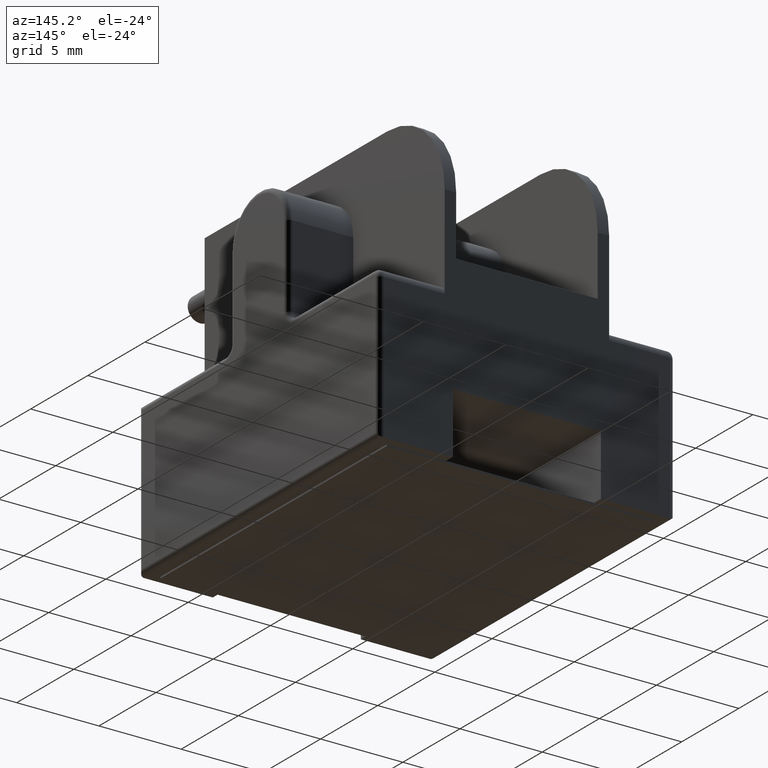
[diagram: clean part render]
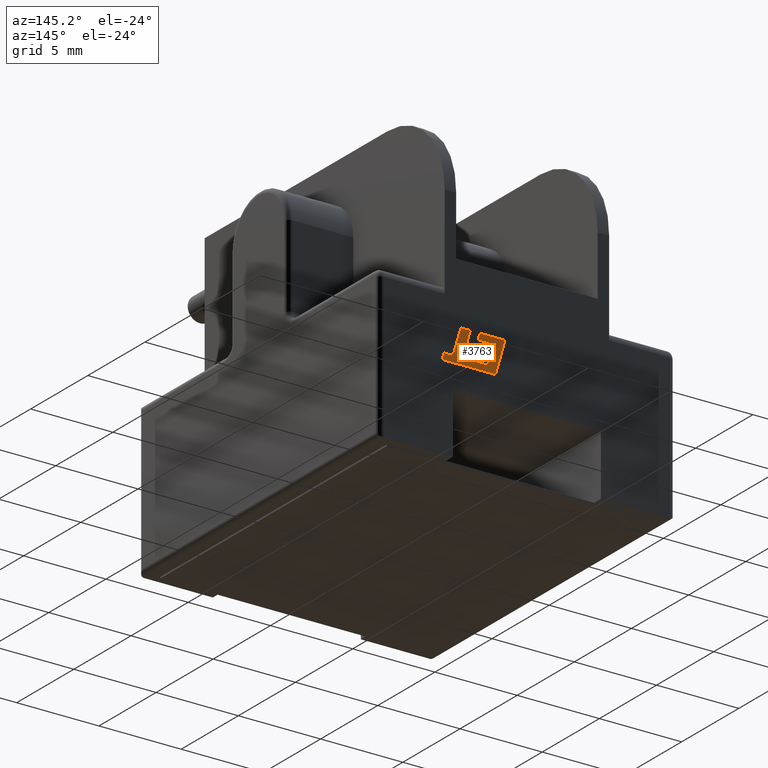
[diagram: same view with one face highlighted and labeled with its STEP entity id]
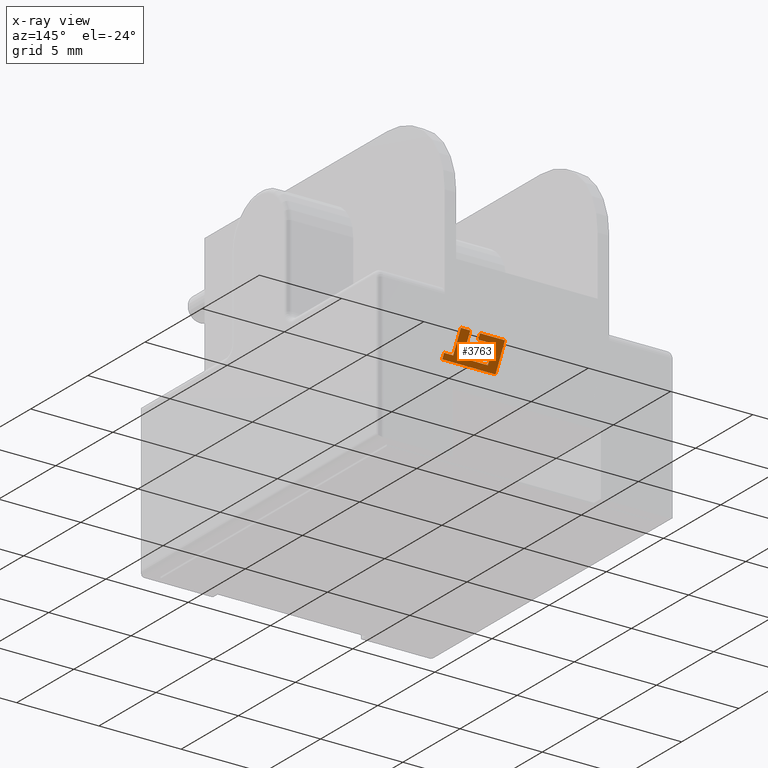
[diagram: x-ray of the same camera — body ghosted, the highlighted face saturated]
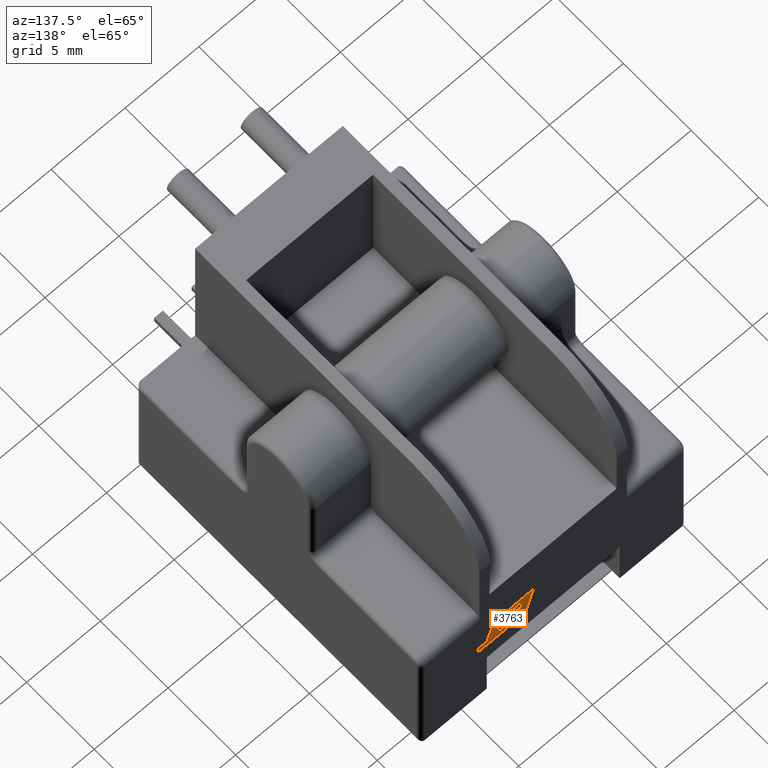
[diagram: same view with one face highlighted and labeled with its STEP entity id]
A machine part, auxiliary view. The second image highlights one B-rep face of the part: STEP entity #3763.
The next image is the same camera in x-ray: the body ghosted, the highlighted face saturated — about 0% of this face is hidden behind the body in this view.
A second angle (auxiliary view) of the same face is appended — the face is thin or edge-on in the first view.
In plain terms, the highlighted planar face has unit normal (-0, 1, 0).
Its self-contained STEP definition (entity closure, byte-faithful):
#9 = CARTESIAN_POINT ( 'NONE',  ( 11.85466442089491300, 21.00099999999999800, -12.32065912516223300 ) ) ;
#29 = LINE ( 'NONE', #2196, #5963 ) ;
#135 = ORIENTED_EDGE ( 'NONE', *, *, #2257, .T. ) ;
#136 = ORIENTED_EDGE ( 'NONE', *, *, #965, .T. ) ;
#167 = CARTESIAN_POINT ( 'NONE',  ( 12.90980248030664500, 21.00099999999999800, -13.94752902455852400 ) ) ;
#275 = VECTOR ( 'NONE', #960, 1000.000000000000000 ) ;
#334 = EDGE_CURVE ( 'NONE', #1079, #3024, #2953, .T. ) ;
#363 = VECTOR ( 'NONE', #5017, 1000.000000000000100 ) ;
#382 = CARTESIAN_POINT ( 'NONE',  ( 10.33140302462834200, 21.00099999999999800, -12.32065912516223300 ) ) ;
#434 = LINE ( 'NONE', #4520, #363 ) ;
#441 = ORIENTED_EDGE ( 'NONE', *, *, #1969, .T. ) ;
#449 = EDGE_CURVE ( 'NONE', #4304, #2992, #434, .T. ) ;
#615 = VERTEX_POINT ( 'NONE', #3828 ) ;
#633 = VERTEX_POINT ( 'NONE', #3364 ) ;
#739 = LINE ( 'NONE', #2608, #2327 ) ;
#745 = EDGE_CURVE ( 'NONE', #2099, #5535, #5323, .T. ) ;
#777 = PLANE ( 'NONE',  #3029 ) ;
#801 = EDGE_CURVE ( 'NONE', #3653, #4601, #4643, .T. ) ;
#814 = LINE ( 'NONE', #889, #2981 ) ;
#851 = DIRECTION ( 'NONE',  ( 0.9999999968487352000, 0.0000000000000000000, 7.938847109499459000E-005 ) ) ;
#852 = CARTESIAN_POINT ( 'NONE',  ( 0.0000000000000000000, 21.00099999999999800, 0.0000000000000000000 ) ) ;
#868 = CARTESIAN_POINT ( 'NONE',  ( 11.85466442089491300, 21.00099999999999800, -12.32065912516223300 ) ) ;
#889 = CARTESIAN_POINT ( 'NONE',  ( 13.01638418762908800, 21.00099999999999800, -12.32065912516223500 ) ) ;
#914 = DIRECTION ( 'NONE',  ( 0.2762437428917228800, 0.0000000000000000000, -0.9610876102172849500 ) ) ;
#918 = VECTOR ( 'NONE', #5331, 1000.000000000000000 ) ;
#960 = DIRECTION ( 'NONE',  ( 1.000000000000000000, 0.0000000000000000000, 0.0000000000000000000 ) ) ;
#965 = EDGE_CURVE ( 'NONE', #4679, #4371, #2594, .T. ) ;
#994 = LINE ( 'NONE', #2058, #5768 ) ;
#1010 = CARTESIAN_POINT ( 'NONE',  ( 12.90980248030664500, 21.00099999999999800, -13.94752902455852400 ) ) ;
#1017 = VECTOR ( 'NONE', #1050, 1000.000000000000100 ) ;
#1050 = DIRECTION ( 'NONE',  ( -0.2763173343569604900, 0.0000000000000000000, 0.9610664548999010600 ) ) ;
#1064 = ORIENTED_EDGE ( 'NONE', *, *, #5482, .T. ) ;
#1079 = VERTEX_POINT ( 'NONE', #868 ) ;
#1087 = VECTOR ( 'NONE', #1632, 1000.000000000000000 ) ;
#1178 = LINE ( 'NONE', #1311, #3775 ) ;
#1185 = ORIENTED_EDGE ( 'NONE', *, *, #2083, .T. ) ;
#1311 = CARTESIAN_POINT ( 'NONE',  ( 14.14788148864672100, 21.00099999999999800, -14.33681034267236300 ) ) ;
#1445 = VECTOR ( 'NONE', #2830, 1000.000000000000000 ) ;
#1450 = CARTESIAN_POINT ( 'NONE',  ( 11.15750014598760700, 21.00099999999999800, -13.20532530390826200 ) ) ;
#1462 = ORIENTED_EDGE ( 'NONE', *, *, #1814, .T. ) ;
#1531 = ORIENTED_EDGE ( 'NONE', *, *, #4720, .T. ) ;
#1550 = EDGE_CURVE ( 'NONE', #4601, #4679, #1178, .T. ) ;
#1573 = VECTOR ( 'NONE', #2221, 1000.000000000000100 ) ;
#1576 = LINE ( 'NONE', #3215, #275 ) ;
#1585 = EDGE_CURVE ( 'NONE', #3024, #4304, #739, .T. ) ;
#1630 = EDGE_CURVE ( 'NONE', #5078, #3784, #814, .T. ) ;
#1632 = DIRECTION ( 'NONE',  ( 0.2746918797667246600, 0.0000000000000000000, -0.9615323037684294600 ) ) ;
#1653 = LINE ( 'NONE', #2340, #2313 ) ;
#1772 = DIRECTION ( 'NONE',  ( -1.000000000000000000, 0.0000000000000000000, 0.0000000000000000000 ) ) ;
#1814 = EDGE_CURVE ( 'NONE', #615, #3001, #1653, .T. ) ;
#1925 = VECTOR ( 'NONE', #5943, 1000.000000000000000 ) ;
#1969 = EDGE_CURVE ( 'NONE', #5046, #5934, #4343, .T. ) ;
#2030 = ORIENTED_EDGE ( 'NONE', *, *, #1585, .T. ) ;
#2058 = CARTESIAN_POINT ( 'NONE',  ( 11.26383664059348000, 21.00099999999999800, -13.57797506950819500 ) ) ;
#2083 = EDGE_CURVE ( 'NONE', #633, #5046, #3532, .T. ) ;
#2099 = VERTEX_POINT ( 'NONE', #167 ) ;
#2161 = CARTESIAN_POINT ( 'NONE',  ( 13.48399257777795400, 21.00099999999999800, -13.94752902455350700 ) ) ;
#2196 = CARTESIAN_POINT ( 'NONE',  ( 13.48399257777795400, 21.00099999999999800, -13.94752902455350700 ) ) ;
#2221 = DIRECTION ( 'NONE',  ( 0.2729786930694863000, 0.0000000000000000000, -0.9620200793798823200 ) ) ;
#2257 = EDGE_CURVE ( 'NONE', #5535, #5078, #1576, .T. ) ;
#2271 = DIRECTION ( 'NONE',  ( -1.000000000000000000, 0.0000000000000000000, 0.0000000000000000000 ) ) ;
#2280 = DIRECTION ( 'NONE',  ( 0.9999891854650020400, 0.0000000000000000000, 0.004650693823678667000 ) ) ;
#2313 = VECTOR ( 'NONE', #3252, 999.9999999999998900 ) ;
#2327 = VECTOR ( 'NONE', #1772, 1000.000000000000000 ) ;
#2340 = CARTESIAN_POINT ( 'NONE',  ( 11.37295629953409400, 21.00099999999999800, -13.95297887718845700 ) ) ;
#2367 = ORIENTED_EDGE ( 'NONE', *, *, #449, .T. ) ;
#2426 = ORIENTED_EDGE ( 'NONE', *, *, #1630, .T. ) ;
#2504 = CARTESIAN_POINT ( 'NONE',  ( 11.15750014598760700, 21.00099999999999800, -13.20532530390826200 ) ) ;
#2594 = LINE ( 'NONE', #3549, #1925 ) ;
#2608 = CARTESIAN_POINT ( 'NONE',  ( 11.96352660648270400, 21.00099999999999800, -12.70430668110527600 ) ) ;
#2662 = ORIENTED_EDGE ( 'NONE', *, *, #3598, .T. ) ;
#2772 = CARTESIAN_POINT ( 'NONE',  ( 11.26383664059348000, 21.00099999999999800, -13.57797506950819500 ) ) ;
#2830 = DIRECTION ( 'NONE',  ( 1.000000000000000000, 0.0000000000000000000, 0.0000000000000000000 ) ) ;
#2929 = LINE ( 'NONE', #5807, #918 ) ;
#2953 = LINE ( 'NONE', #9, #1573 ) ;
#2981 = VECTOR ( 'NONE', #914, 999.9999999999998900 ) ;
#2992 = VERTEX_POINT ( 'NONE', #2504 ) ;
#3001 = VERTEX_POINT ( 'NONE', #3349 ) ;
#3024 = VERTEX_POINT ( 'NONE', #3813 ) ;
#3029 = AXIS2_PLACEMENT_3D ( 'NONE', #852, #4011, #4552 ) ;
#3137 = VECTOR ( 'NONE', #2280, 1000.000000000000200 ) ;
#3156 = ORIENTED_EDGE ( 'NONE', *, *, #745, .T. ) ;
#3215 = CARTESIAN_POINT ( 'NONE',  ( 12.44205922316260200, 21.00099999999999800, -12.32065912516223500 ) ) ;
#3252 = DIRECTION ( 'NONE',  ( 0.9999960426590096500, 0.0000000000000000000, 0.002813301676023192500 ) ) ;
#3349 = CARTESIAN_POINT ( 'NONE',  ( 12.29686877359343300, 21.00099999999999800, -13.95037962239055000 ) ) ;
#3364 = CARTESIAN_POINT ( 'NONE',  ( 12.02259834994105800, 21.00099999999999800, -13.20532530390826200 ) ) ;
#3483 = CARTESIAN_POINT ( 'NONE',  ( 14.03599617510844600, 21.00099999999999800, -13.94748520183173700 ) ) ;
#3532 = LINE ( 'NONE', #3956, #1087 ) ;
#3549 = CARTESIAN_POINT ( 'NONE',  ( 10.91131884065501000, 21.00099999999999800, -14.33681034267236300 ) ) ;
#3598 = EDGE_CURVE ( 'NONE', #5934, #615, #994, .T. ) ;
#3622 = CARTESIAN_POINT ( 'NONE',  ( 11.01446756832453600, 21.00099999999999800, -12.70430668110527600 ) ) ;
#3653 = VERTEX_POINT ( 'NONE', #4412 ) ;
#3713 = CARTESIAN_POINT ( 'NONE',  ( 10.91131884065501000, 21.00099999999999800, -14.33681034267236300 ) ) ;
#3763 = ADVANCED_FACE ( 'NONE', ( #6036 ), #777, .T. ) ;
#3775 = VECTOR ( 'NONE', #2271, 1000.000000000000000 ) ;
#3784 = VERTEX_POINT ( 'NONE', #2161 ) ;
#3810 = EDGE_LOOP ( 'NONE', ( #1462, #5864, #3156, #135, #2426, #5924, #5455, #4306, #136, #1064, #5830, #2030, #2367, #1531, #1185, #441, #2662 ) ) ;
#3813 = CARTESIAN_POINT ( 'NONE',  ( 11.96352660648270400, 21.00099999999999800, -12.70430668110527600 ) ) ;
#3828 = CARTESIAN_POINT ( 'NONE',  ( 11.37295629953409400, 21.00099999999999800, -13.95297887718845700 ) ) ;
#3851 = DIRECTION ( 'NONE',  ( -1.000000000000000000, 0.0000000000000000000, 0.0000000000000000000 ) ) ;
#3956 = CARTESIAN_POINT ( 'NONE',  ( 12.02259834994105800, 21.00099999999999800, -13.20532530390826200 ) ) ;
#4011 = DIRECTION ( 'NONE',  ( -0.0000000000000000000, 1.000000000000000000, 0.0000000000000000000 ) ) ;
#4304 = VERTEX_POINT ( 'NONE', #3622 ) ;
#4306 = ORIENTED_EDGE ( 'NONE', *, *, #1550, .T. ) ;
#4343 = LINE ( 'NONE', #4791, #5042 ) ;
#4371 = VERTEX_POINT ( 'NONE', #382 ) ;
#4373 = CARTESIAN_POINT ( 'NONE',  ( 12.44205922316260200, 21.00099999999999800, -12.32065912516223500 ) ) ;
#4412 = CARTESIAN_POINT ( 'NONE',  ( 14.03599617510844600, 21.00099999999999800, -13.94748520183173700 ) ) ;
#4520 = CARTESIAN_POINT ( 'NONE',  ( 11.01446756832453600, 21.00099999999999800, -12.70430668110527600 ) ) ;
#4539 = CARTESIAN_POINT ( 'NONE',  ( 13.01638418762908800, 21.00099999999999800, -12.32065912516223500 ) ) ;
#4552 = DIRECTION ( 'NONE',  ( 0.0000000000000000000, -0.0000000000000000000, 1.000000000000000000 ) ) ;
#4601 = VERTEX_POINT ( 'NONE', #5064 ) ;
#4643 = LINE ( 'NONE', #3483, #4724 ) ;
#4679 = VERTEX_POINT ( 'NONE', #3713 ) ;
#4720 = EDGE_CURVE ( 'NONE', #2992, #633, #5942, .T. ) ;
#4724 = VECTOR ( 'NONE', #5804, 1000.000000000000200 ) ;
#4791 = CARTESIAN_POINT ( 'NONE',  ( 12.12905745090531100, 21.00099999999999800, -13.57797506950819500 ) ) ;
#4954 = DIRECTION ( 'NONE',  ( 0.2793947940814871000, 0.0000000000000000000, -0.9601763114346049100 ) ) ;
#5017 = DIRECTION ( 'NONE',  ( 0.2745159998572647700, 0.0000000000000000000, -0.9615825319869149000 ) ) ;
#5042 = VECTOR ( 'NONE', #3851, 1000.000000000000000 ) ;
#5046 = VERTEX_POINT ( 'NONE', #5485 ) ;
#5064 = CARTESIAN_POINT ( 'NONE',  ( 14.14788148864672100, 21.00099999999999800, -14.33681034267236300 ) ) ;
#5078 = VERTEX_POINT ( 'NONE', #4539 ) ;
#5323 = LINE ( 'NONE', #1010, #1017 ) ;
#5331 = DIRECTION ( 'NONE',  ( 1.000000000000000000, 0.0000000000000000000, 0.0000000000000000000 ) ) ;
#5455 = ORIENTED_EDGE ( 'NONE', *, *, #801, .T. ) ;
#5482 = EDGE_CURVE ( 'NONE', #4371, #1079, #2929, .T. ) ;
#5485 = CARTESIAN_POINT ( 'NONE',  ( 12.12905745090531100, 21.00099999999999800, -13.57797506950819500 ) ) ;
#5509 = LINE ( 'NONE', #6019, #3137 ) ;
#5535 = VERTEX_POINT ( 'NONE', #4373 ) ;
#5721 = EDGE_CURVE ( 'NONE', #3784, #3653, #29, .T. ) ;
#5768 = VECTOR ( 'NONE', #4954, 1000.000000000000000 ) ;
#5804 = DIRECTION ( 'NONE',  ( 0.2762033010290156400, 0.0000000000000000000, -0.9610992334304896400 ) ) ;
#5807 = CARTESIAN_POINT ( 'NONE',  ( 10.33140302462834200, 21.00099999999999800, -12.32065912516223300 ) ) ;
#5830 = ORIENTED_EDGE ( 'NONE', *, *, #334, .T. ) ;
#5864 = ORIENTED_EDGE ( 'NONE', *, *, #5870, .T. ) ;
#5870 = EDGE_CURVE ( 'NONE', #3001, #2099, #5509, .T. ) ;
#5924 = ORIENTED_EDGE ( 'NONE', *, *, #5721, .T. ) ;
#5934 = VERTEX_POINT ( 'NONE', #2772 ) ;
#5942 = LINE ( 'NONE', #1450, #1445 ) ;
#5943 = DIRECTION ( 'NONE',  ( -0.2764273280489776800, 0.0000000000000000000, 0.9610348236706632900 ) ) ;
#5963 = VECTOR ( 'NONE', #851, 1000.000000000000100 ) ;
#6019 = CARTESIAN_POINT ( 'NONE',  ( 12.29686877359343300, 21.00099999999999800, -13.95037962239055000 ) ) ;
#6036 = FACE_OUTER_BOUND ( 'NONE', #3810, .T. ) ;